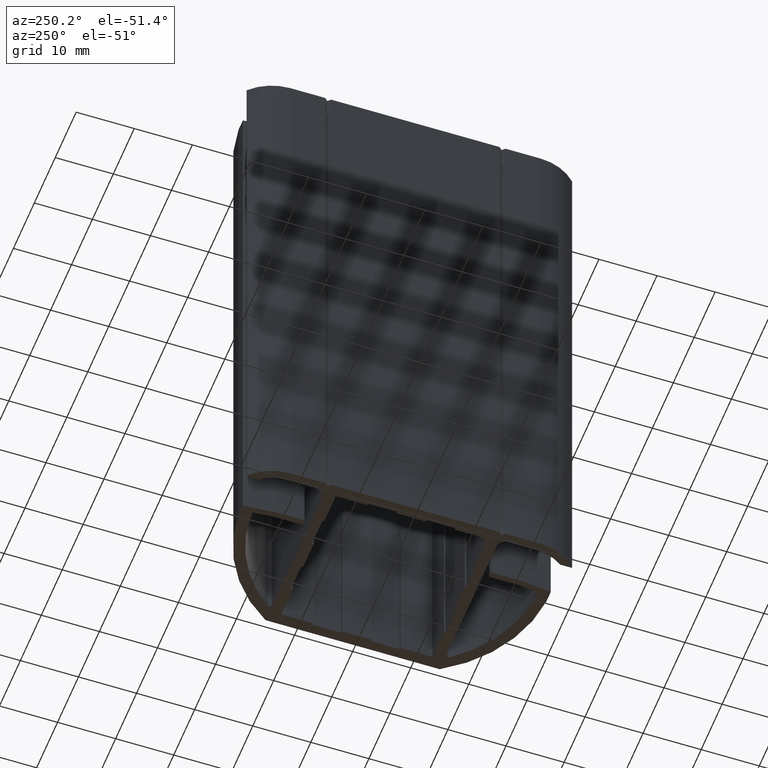
[diagram: clean part render]
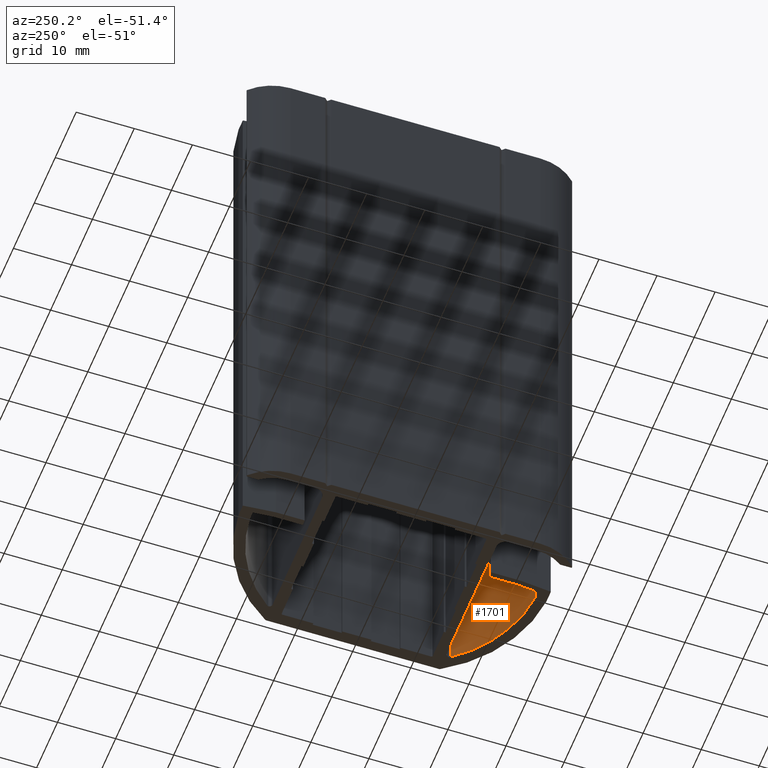
[diagram: same view with one face highlighted and labeled with its STEP entity id]
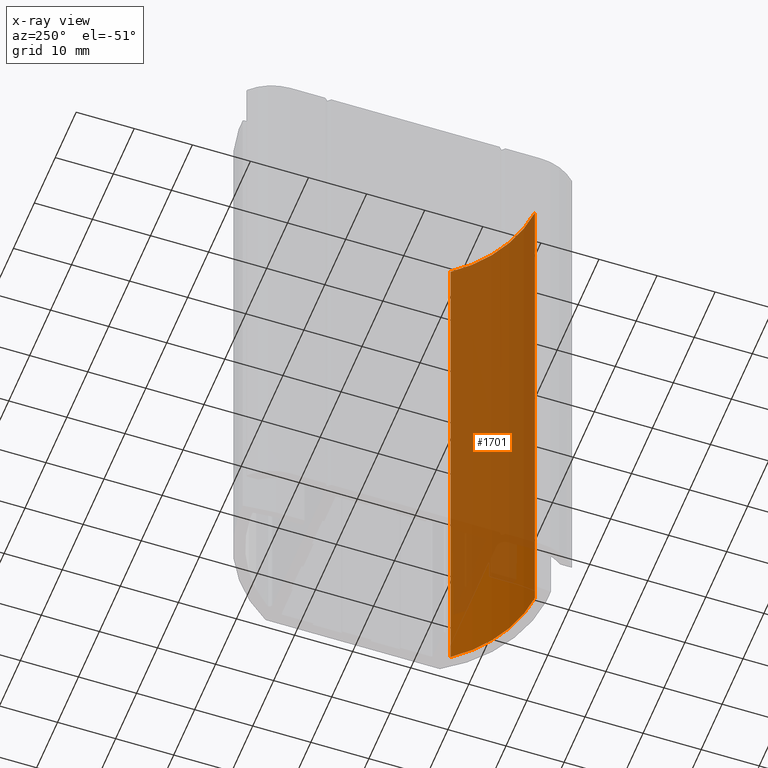
[diagram: x-ray of the same camera — body ghosted, the highlighted face saturated]
A machine part, auxiliary view. The second image highlights one B-rep face of the part: STEP entity #1701.
The next image is the same camera in x-ray: the body ghosted, the highlighted face saturated — about 85% of this face is hidden behind the body in this view.
In plain terms, the highlighted cylindrical surface (partial cylindrical patch) has radius 22.3137 mm, axis along (0, 0, -1).
Its self-contained STEP definition (entity closure, byte-faithful):
#1641=CARTESIAN_POINT('',(27.021796184647883,-15.803892876904541,-100.0));
#1642=VERTEX_POINT('',#1641);
#1650=CARTESIAN_POINT('',(27.021796184647883,-15.803892876904541,0.0));
#1651=VERTEX_POINT('',#1650);
#1652=CARTESIAN_POINT('',(27.021796184647883,-15.803892876904541,-100.0));
#1653=DIRECTION('',(0.0,0.0,1.0));
#1654=VECTOR('',#1653,100.0);
#1655=LINE('',#1652,#1654);
#1656=EDGE_CURVE('',#1642,#1651,#1655,.T.);
#1669=CARTESIAN_POINT('',(9.302459534493892,-2.241940800210500,-100.0));
#1670=DIRECTION('',(0.0,0.0,-1.0));
#1671=DIRECTION('',(0.794101049908854,-0.607785753809396,0.0));
#1672=AXIS2_PLACEMENT_3D('',#1669,#1670,#1671);
#1673=CYLINDRICAL_SURFACE('',#1672,22.313705103636099);
#1674=CARTESIAN_POINT('',(10.877336072738899,-24.500000000000000,-100.0));
#1675=VERTEX_POINT('',#1674);
#1676=CARTESIAN_POINT('',(9.302459534493892,-2.241940800210500,-100.0));
#1677=DIRECTION('',(0.0,0.0,-1.0));
#1678=DIRECTION('',(1.0,0.0,0.0));
#1679=AXIS2_PLACEMENT_3D('',#1676,#1677,#1678);
#1680=CIRCLE('',#1679,22.313705103636099);
#1681=EDGE_CURVE('',#1642,#1675,#1680,.T.);
#1682=ORIENTED_EDGE('',*,*,#1681,.T.);
#1683=CARTESIAN_POINT('',(10.877336072738899,-24.500000000000000,0.0));
#1684=VERTEX_POINT('',#1683);
#1685=CARTESIAN_POINT('',(10.877336072738899,-24.500000000000000,-100.0));
#1686=DIRECTION('',(0.0,0.0,1.0));
#1687=VECTOR('',#1686,100.0);
#1688=LINE('',#1685,#1687);
#1689=EDGE_CURVE('',#1675,#1684,#1688,.T.);
#1690=ORIENTED_EDGE('',*,*,#1689,.T.);
#1691=CARTESIAN_POINT('',(9.302459534493892,-2.241940800210500,0.0));
#1692=DIRECTION('',(0.0,0.0,-1.0));
#1693=DIRECTION('',(1.0,0.0,0.0));
#1694=AXIS2_PLACEMENT_3D('',#1691,#1692,#1693);
#1695=CIRCLE('',#1694,22.313705103636099);
#1696=EDGE_CURVE('',#1651,#1684,#1695,.T.);
#1697=ORIENTED_EDGE('',*,*,#1696,.F.);
#1698=ORIENTED_EDGE('',*,*,#1656,.F.);
#1699=EDGE_LOOP('',(#1682,#1690,#1697,#1698));
#1700=FACE_OUTER_BOUND('',#1699,.T.);
#1701=ADVANCED_FACE('',(#1700),#1673,.F.);